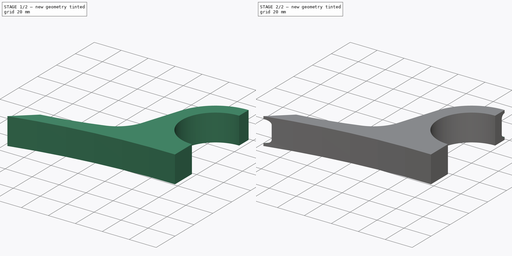
[diagram: build sequence overview — one tinted view per stage of 2, left to right]
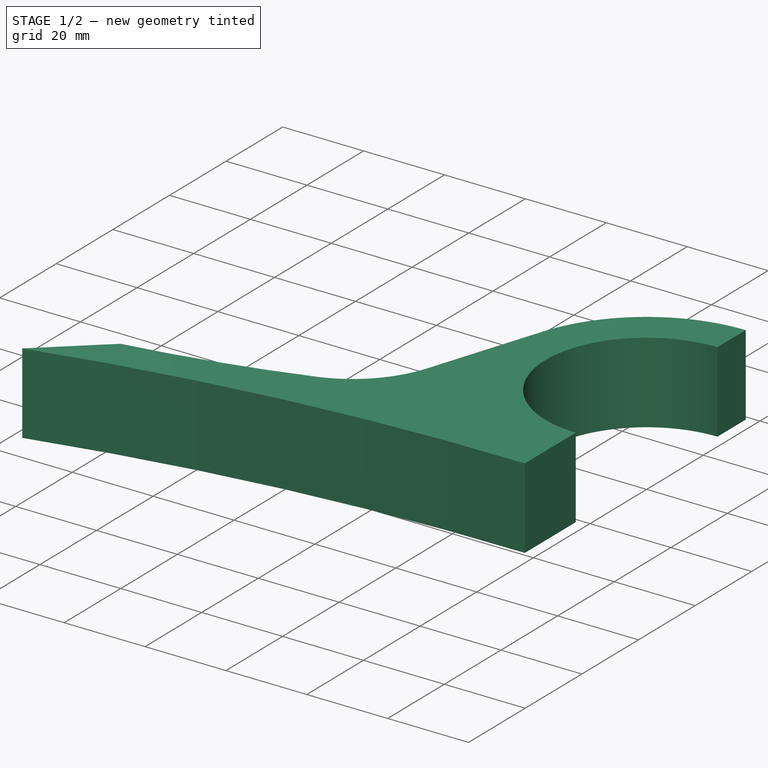
[diagram: stage 1 of 2 — iso view after this stage's code; geometry added in this stage tinted green]
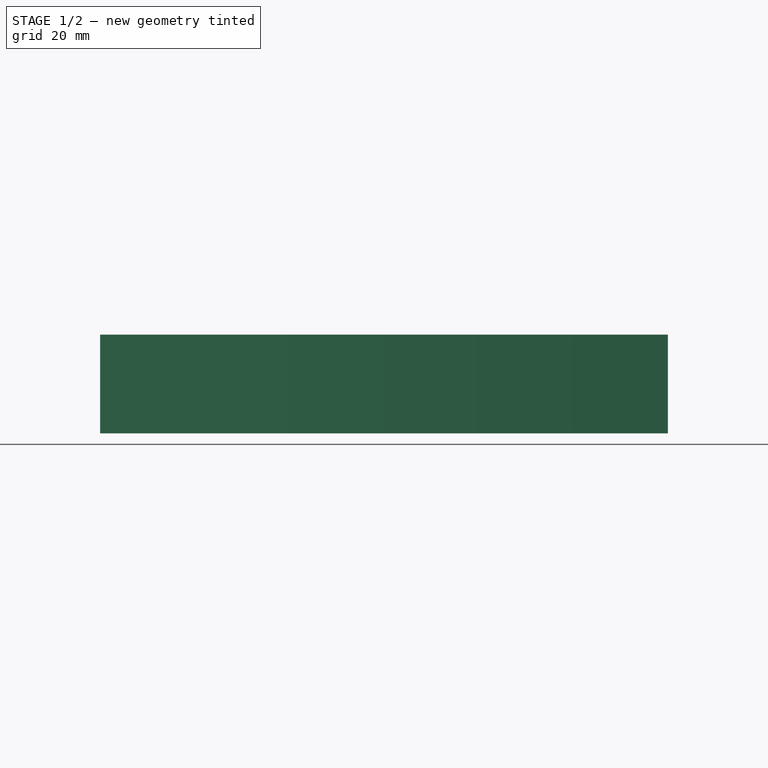
[diagram: stage 1 of 2 — front view after this stage's code; geometry added in this stage tinted green]
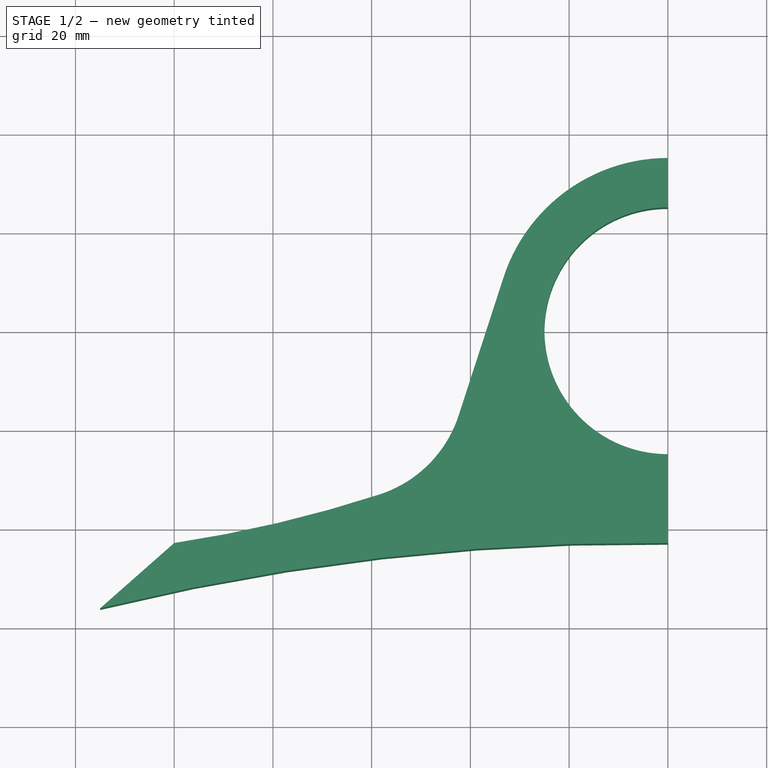
[diagram: stage 1 of 2 — top view after this stage's code; geometry added in this stage tinted green]
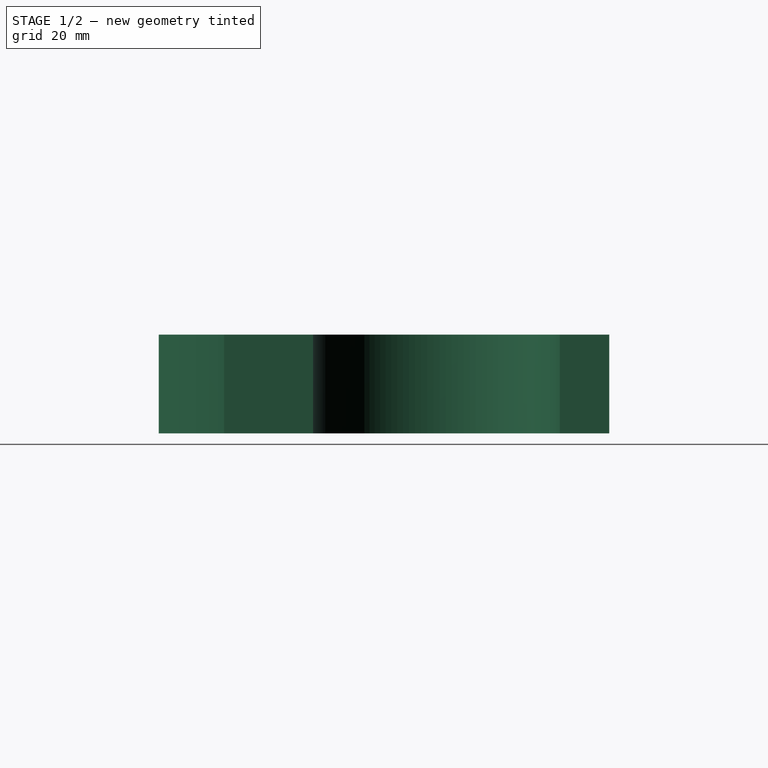
[diagram: stage 1 of 2 — right view after this stage's code; geometry added in this stage tinted green]
FCSTD DOCUMENT  (FreeCAD 0.21RUnknown)
Label: part26
License: All rights reserved
LicenseURL: http://en.wikipedia.org/wiki/All_rights_reserved
objects: Sketcher::SketchObject×4, PartDesign::Pad×1, PartDesign::SubtractivePipe×1, PartDesign::Body×1
note: 9 computed .brp shape members not serialized (recipe doc carries the construction recipe); baked Part::Feature solids carry a one-line shape summary decoded from their .brp

FEATURE [Sketcher::SketchObject] Sketch
  FullyConstrained = false
  MapMode = 5
  Support = -> [XY_Plane]
  sketch-geometry (11):
    g0: ArcOfCircle CenterX=0 CenterY=0 CenterZ=0 NormalX=0 NormalY=0 NormalZ=1 AngleXU=0 Radius=25 StartAngle=1.5708 EndAngle=4.71239
    g1: LineSegment StartX=0 StartY=0 StartZ=0 EndX=-40.3097 EndY=13.0974 EndZ=0
    g2: LineSegment StartX=0 StartY=0 StartZ=0 EndX=-53.1054 EndY=-21.456 EndZ=0
    g3: ArcOfCircle CenterX=0 CenterY=0 CenterZ=0 NormalX=0 NormalY=0 NormalZ=1 AngleXU=0 Radius=35 StartAngle=1.5708 EndAngle=2.82743
    g4: LineSegment StartX=-33.287 StartY=10.8156 StartZ=0 EndX=-42.3623 EndY=-17.1155 EndZ=0
    g5: ArcOfCircle CenterX=-66.1388 CenterY=-9.39007 CenterZ=0 NormalX=0 NormalY=0 NormalZ=1 AngleXU=0 Radius=25 StartAngle=5.02689 EndAngle=5.96903
    g6: ArcOfCircle CenterX=-138.834 CenterY=214.084 CenterZ=0 NormalX=0 NormalY=0 NormalZ=1 AngleXU=0 Radius=260 StartAngle=4.86231 EndAngle=5.02689
    g7: LineSegment StartX=-3.91e-14 StartY=-25 StartZ=0 EndX=-3.91e-14 EndY=-43 EndZ=0
    g8: LineSegment StartX=1.5e-15 StartY=25 StartZ=0 EndX=1.5e-15 EndY=35 EndZ=0
    g9: ArcOfCircle CenterX=-5.34942 CenterY=-502.969 CenterZ=0 NormalX=0 NormalY=0 NormalZ=1 AngleXU=0 Radius=460 StartAngle=1.55917 EndAngle=1.81148
    g10: LineSegment StartX=-100 StartY=-43 StartZ=0 EndX=-115 EndY=-56.2288 EndZ=0
  constraints (31):
    c: Coincident(g0,g-1)
    c: Diameter(g0) = 50
    c: Coincident(g1,g0)
    c: Coincident(g2,g0)
    c: Angle(g-2,g1) = 1.25664
    c: Angle(g1,g2) = 0.698132
    c: Coincident(g3,g0)
    c: PointOnObject(g3,g-2)
    c: PointOnObject(g3,g1)
    c: Radius(g3) = 35
    c: PointOnObject(g4,g2)
    c: Tangent(g4,g3) = -1.5708
    c: Tangent(g5,g4) = 1.5708
    c: Radius(g5) = 25
    c: Tangent(g6,g5) = -1.5708
    c: PointOnObject(g7,g-2)
    c: Vertical(g7)
    c: Horizontal(g6,g7)
    c: Coincident(g8,g3)
    c: Vertical(g8)
    c: Coincident(g0,g7)
    c: Coincident(g0,g8)
    c: Coincident(g9,g7)
    c: Coincident(g10,g6)
    c: Coincident(g10,g9)
    c: Radius(g9) = 460
    c: DistanceY(g7,g7) = 18
    c: Distance(g10) = 20
    c: DistanceX(g9,g7) = 115
    c: DistanceX(g6,g0) = 100
    c: Radius(g6) = 260
FEATURE [PartDesign::Pad] Pad
  Direction = (0,0,1)
  Length = 20
  Length2 = 10
  Profile = -> Sketch
  ReferenceAxis = -> Sketch [N_Axis]
  Type = 0
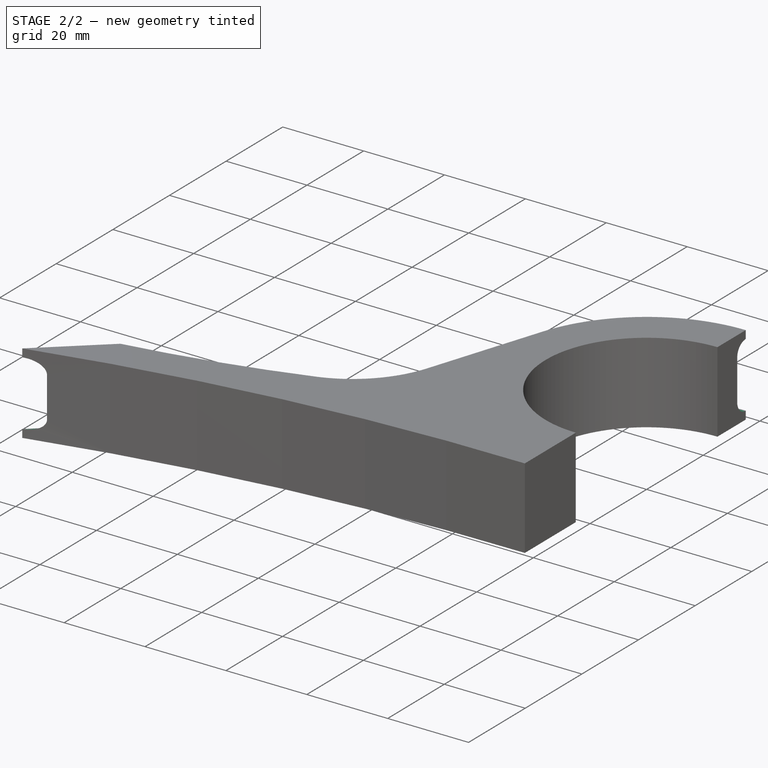
[diagram: stage 2 of 2 — iso view after this stage's code; geometry added in this stage tinted green]
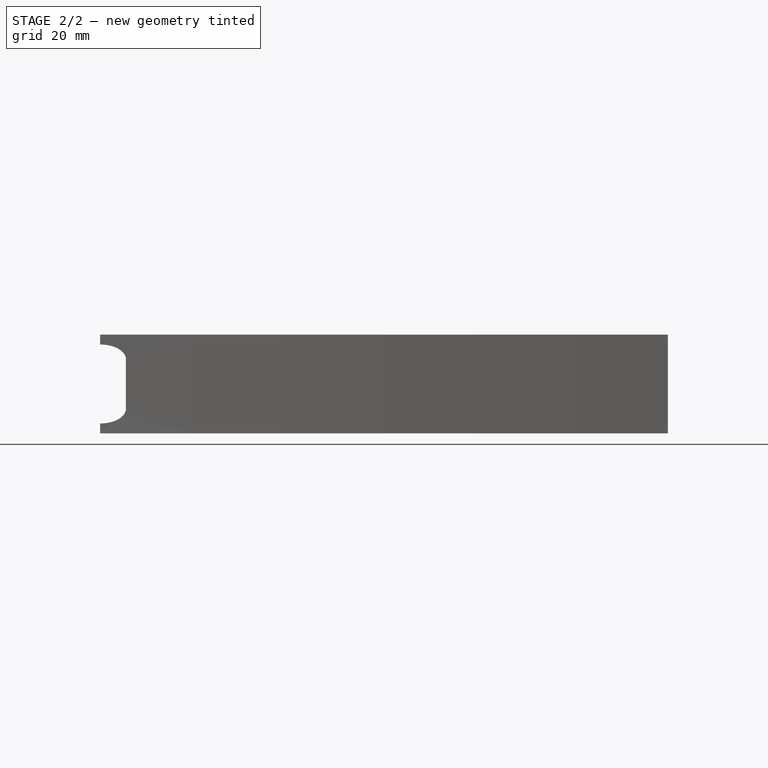
[diagram: stage 2 of 2 — front view after this stage's code; geometry added in this stage tinted green]
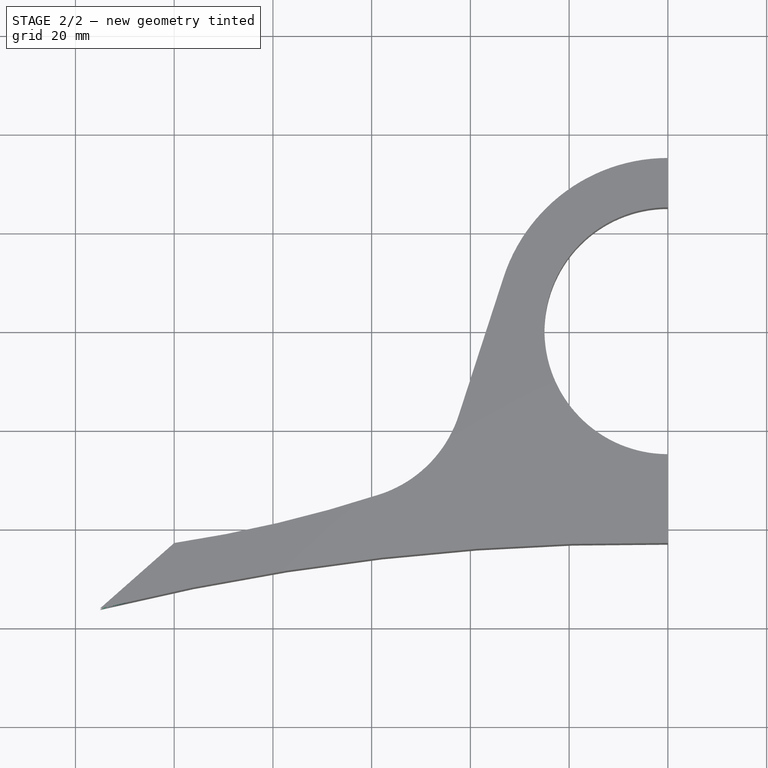
[diagram: stage 2 of 2 — top view after this stage's code; geometry added in this stage tinted green]
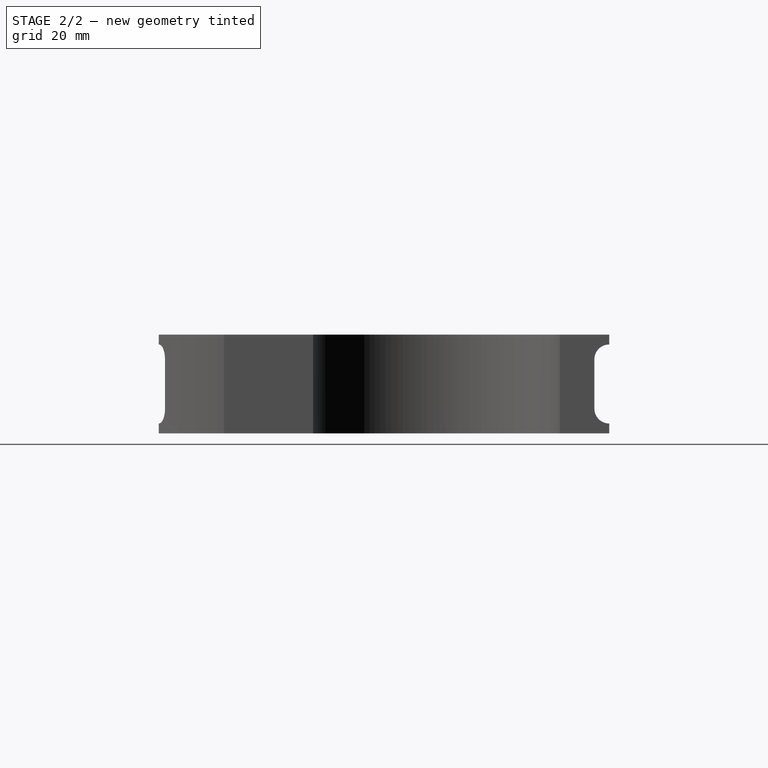
[diagram: stage 2 of 2 — right view after this stage's code; geometry added in this stage tinted green]
FEATURE [Sketcher::SketchObject] Sketch001
  ExternalGeometry = -> [Pad]
  FullyConstrained = true
  MapMode = 5
  Placement = pos=(-22.4186,25.4203,0) rot=(-0.258199,0.68313,0.68313;3.64695rad)
  Support = -> [Pad]
  sketch-geometry (4):
    g0: ArcOfCircle CenterX=103.442 CenterY=15 CenterZ=0 NormalX=0 NormalY=0 NormalZ=1 AngleXU=0 Radius=3 StartAngle=0 EndAngle=3.14159
    g1: ArcOfCircle CenterX=103.442 CenterY=5 CenterZ=0 NormalX=0 NormalY=0 NormalZ=1 AngleXU=0 Radius=3 StartAngle=3.14159 EndAngle=6.28319
    g2: LineSegment StartX=100.442 StartY=15 StartZ=0 EndX=100.442 EndY=5 EndZ=0
    g3: LineSegment StartX=106.442 StartY=5 StartZ=0 EndX=106.442 EndY=15 EndZ=0
  constraints (10):
    c: Tangent(g0,g2) = -1.5708
    c: Tangent(g2,g1) = -1.5708
    c: Tangent(g1,g3) = -1.5708
    c: Tangent(g3,g0) = -1.5708
    c: Equal(g0,g1)
    c: Vertical(g2)
    c: Vertical(g0,g-3)
    c: DistanceY(g0,g-3) = 5
    c: DistanceY(g-4,g1) = 5
    c: Radius(g1) = 3
FEATURE [Sketcher::SketchObject] Sketch002
  ExternalGeometry = -> [Pad]
  FullyConstrained = true
  MapMode = 5
  Placement = pos=(1.5e-15,0,0) rot=(0.57735,0.57735,0.57735;2.0944rad)
  Support = -> [Pad]
  sketch-geometry (4):
    g0: ArcOfCircle CenterX=35 CenterY=15 CenterZ=0 NormalX=0 NormalY=0 NormalZ=1 AngleXU=0 Radius=3 StartAngle=0 EndAngle=3.14159
    g1: ArcOfCircle CenterX=35 CenterY=5 CenterZ=0 NormalX=0 NormalY=0 NormalZ=1 AngleXU=0 Radius=3 StartAngle=3.14159 EndAngle=6.28319
    g2: LineSegment StartX=32 StartY=15 StartZ=0 EndX=32 EndY=5 EndZ=0
    g3: LineSegment StartX=38 StartY=5 StartZ=0 EndX=38 EndY=15 EndZ=0
  constraints (10):
    c: Tangent(g0,g2) = -1.5708
    c: Tangent(g2,g1) = -1.5708
    c: Tangent(g1,g3) = -1.5708
    c: Tangent(g3,g0) = -1.5708
    c: Equal(g0,g1)
    c: Vertical(g2)
    c: Vertical(g0,g-3)
    c: DistanceY(g-4,g1) = 5
    c: DistanceY(g0,g-3) = 5
    c: Radius(g1) = 3
FEATURE [PartDesign::SubtractivePipe] SubtractivePipe
  AuxilleryCurvelinear = true
  AuxillerySpineTangent = false
  BaseFeature = -> Pad
  Binormal = (0,0,0)
  Mode = 0
  Profile = -> Sketch002
  Spine = -> Pad [Edge26,Edge24,Edge21,Edge18,Edge15]
  SpineTangent = false
  Transformation = 0
  Transition = 0
FEATURE [Sketcher::SketchObject] Sketch003
  ExternalGeometry = -> [Sketch]
  FullyConstrained = false
  MapMode = 5
  Support = -> [XY_Plane]
  sketch-geometry (4):
    g0: LineSegment StartX=-138.834 StartY=214.084 StartZ=0 EndX=-85.6343 EndY=-43.3818 EndZ=0
    g1: LineSegment StartX=-138.834 StartY=214.084 StartZ=0 EndX=-67.0179 EndY=-39.317 EndZ=0
    g2: LineSegment StartX=-85.6343 StartY=-43.3818 StartZ=0 EndX=-96.5865 EndY=9.62304 EndZ=0
    g3: LineSegment StartX=-67.0179 StartY=-39.317 StartZ=0 EndX=-84.0347 EndY=20.7266 EndZ=0
  constraints (6):
    c: Coincident(g0,g-3)
    c: Coincident(g1,g0)
    c: Coincident(g2,g0)
    c: PointOnObject(g2,g0)
    c: Coincident(g3,g1)
    c: PointOnObject(g3,g1)
FEATURE [PartDesign::Body] Body
  Group = -> [Sketch,Pad,Sketch001,Sketch002,SubtractivePipe,Sketch003]
  Origin = -> Origin
  Tip = -> SubtractivePipe
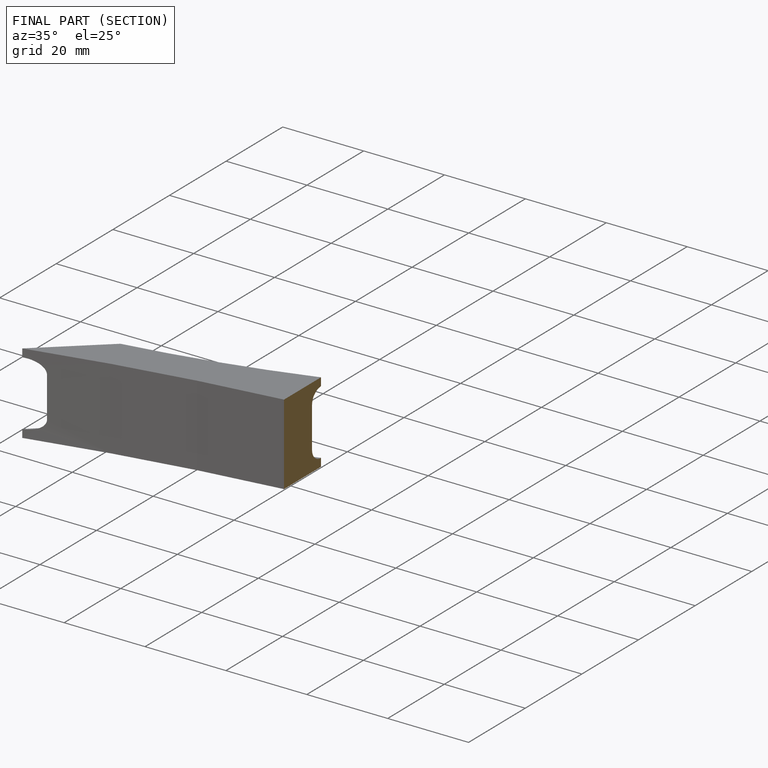
[diagram: finished part — half-section view (interior)]
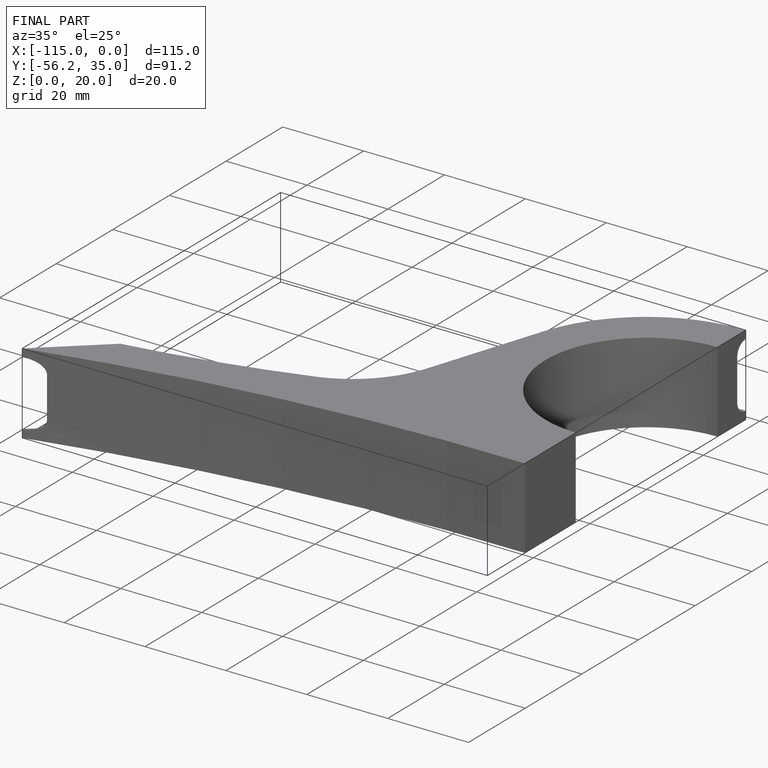
[diagram: finished part — iso view with bounding-box wireframe]
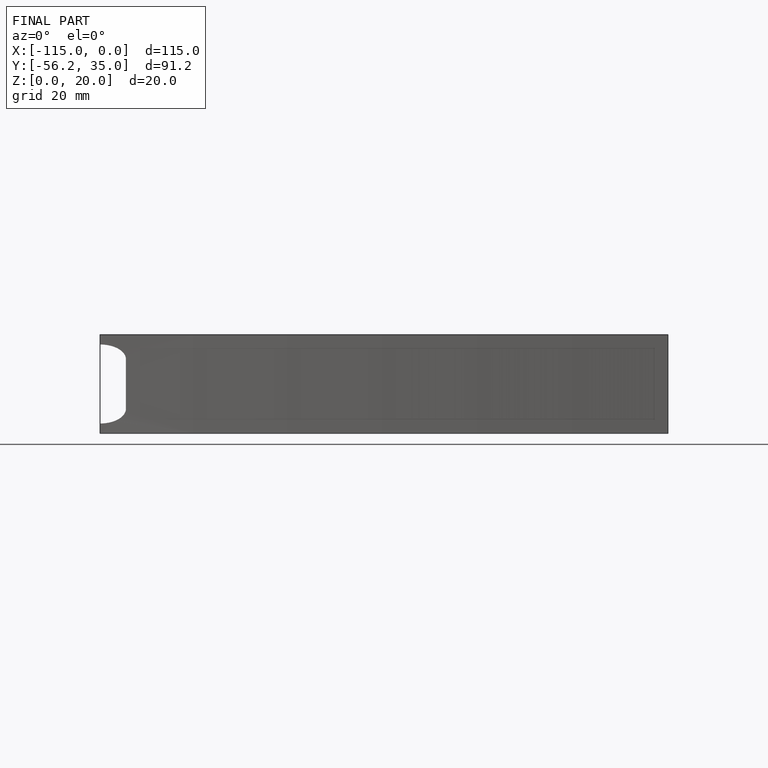
[diagram: finished part — front view with bounding-box wireframe]
